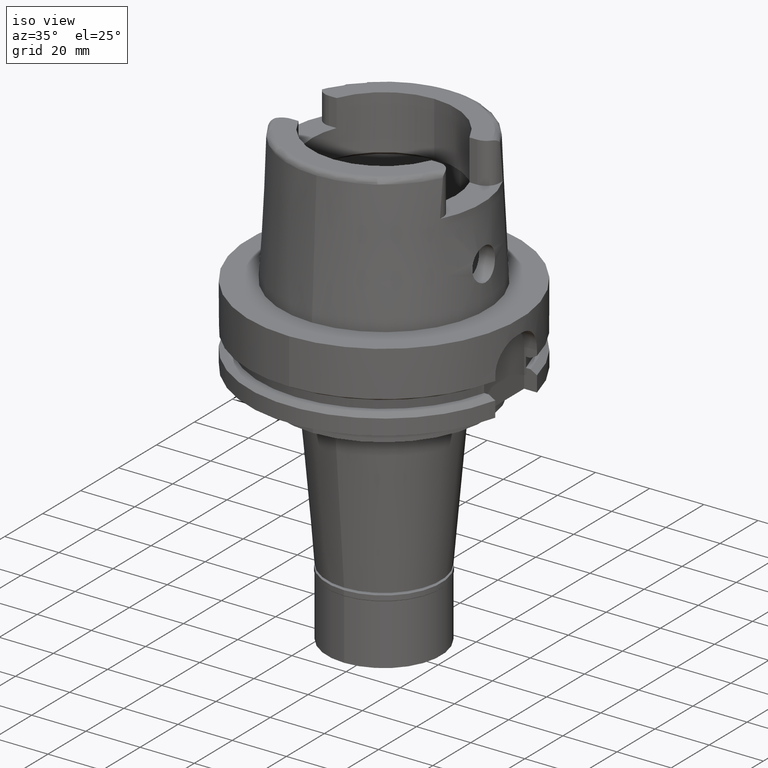
[diagram: clean part render]
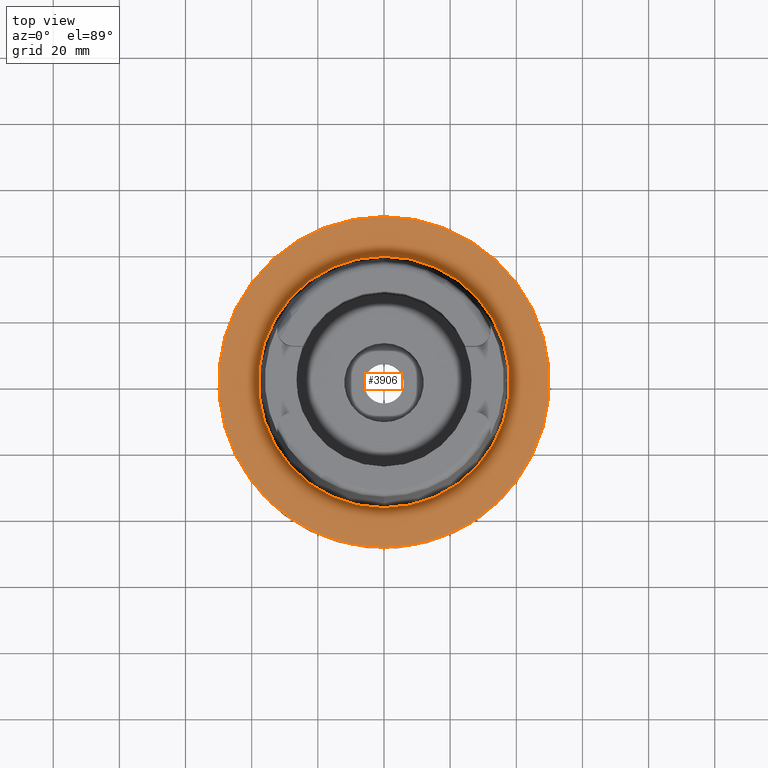
[diagram: tour spotlight — one face highlighted and labeled with its STEP entity id]
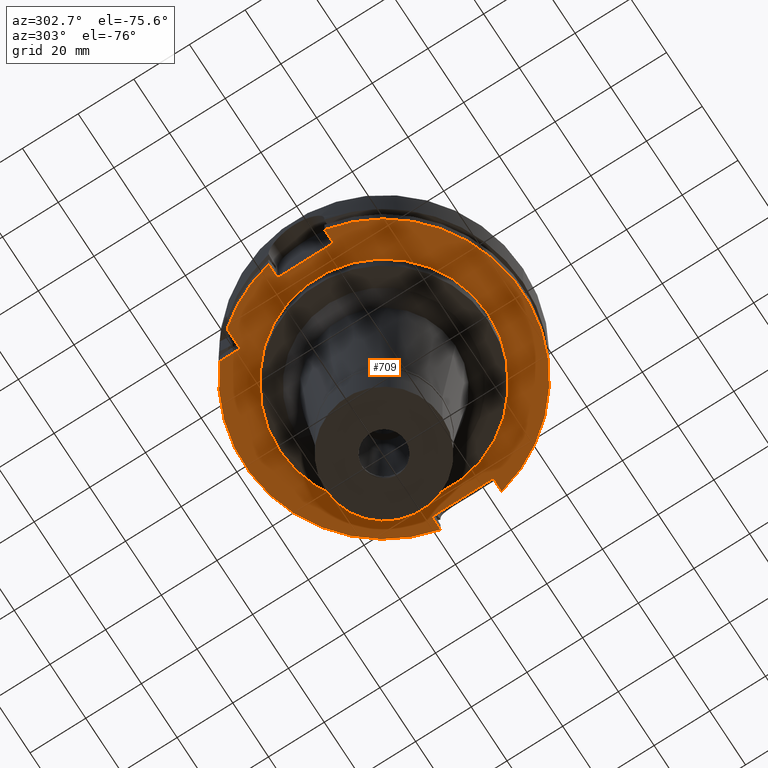
[diagram: tour spotlight — one face highlighted and labeled with its STEP entity id]
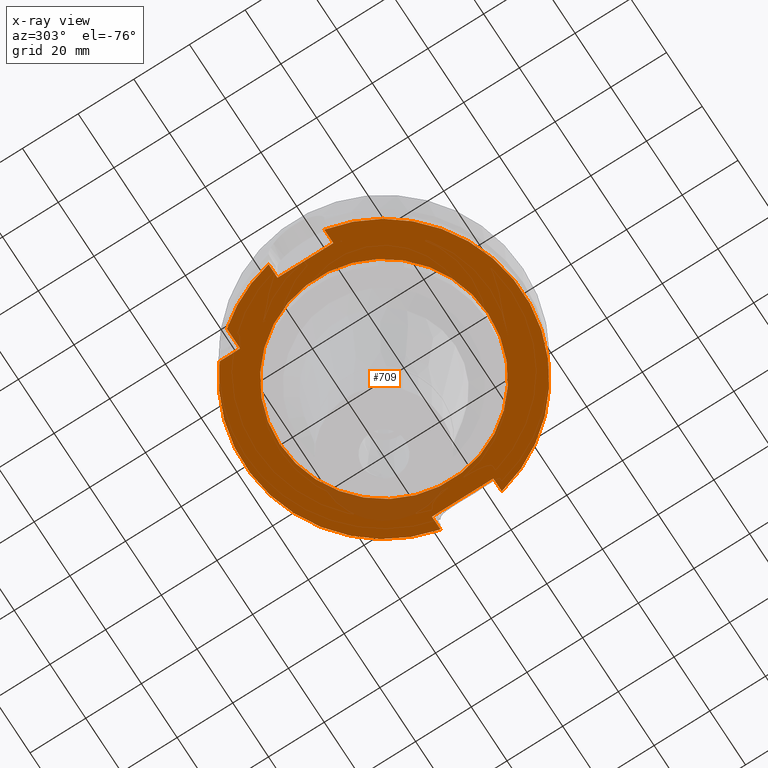
[diagram: x-ray of the same camera — body ghosted, this tour face saturated]
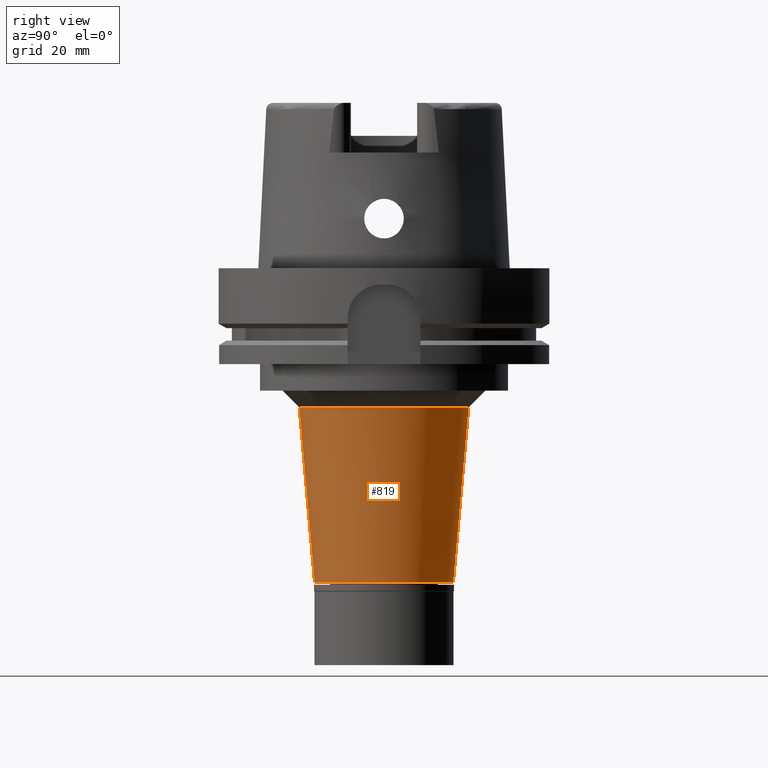
[diagram: tour spotlight — one face highlighted and labeled with its STEP entity id]
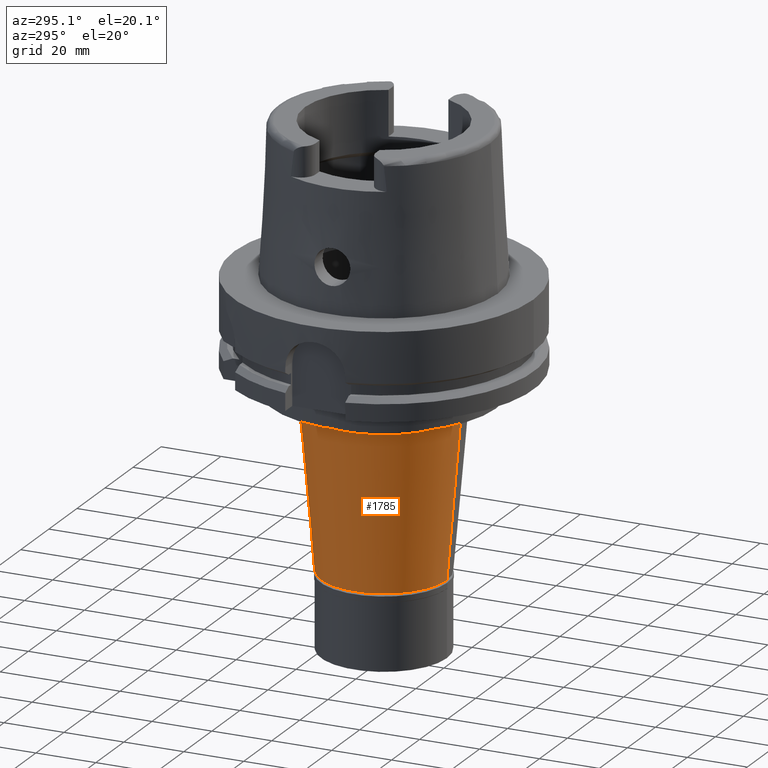
[diagram: tour spotlight — one face highlighted and labeled with its STEP entity id]
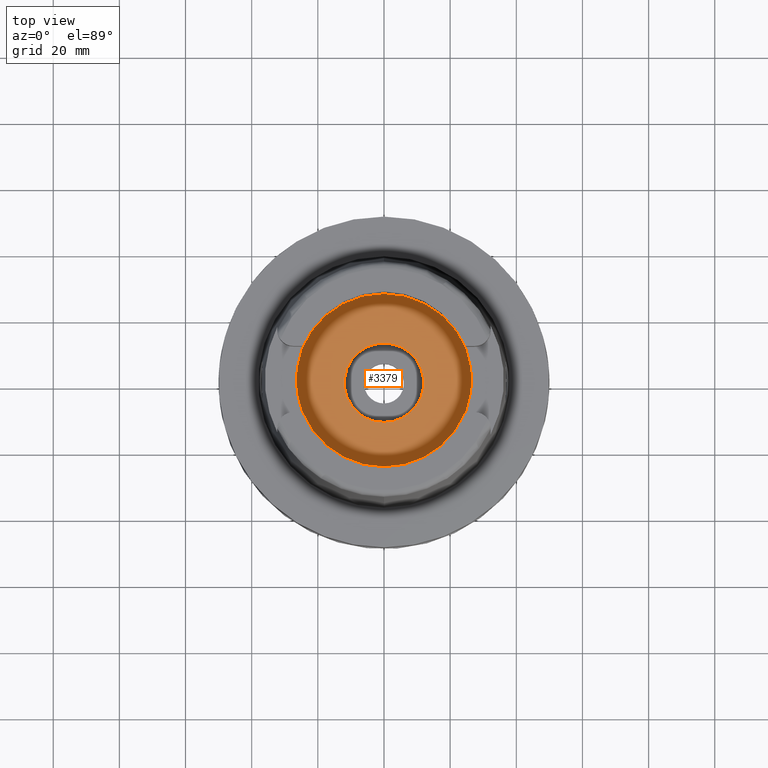
[diagram: tour spotlight — one face highlighted and labeled with its STEP entity id]
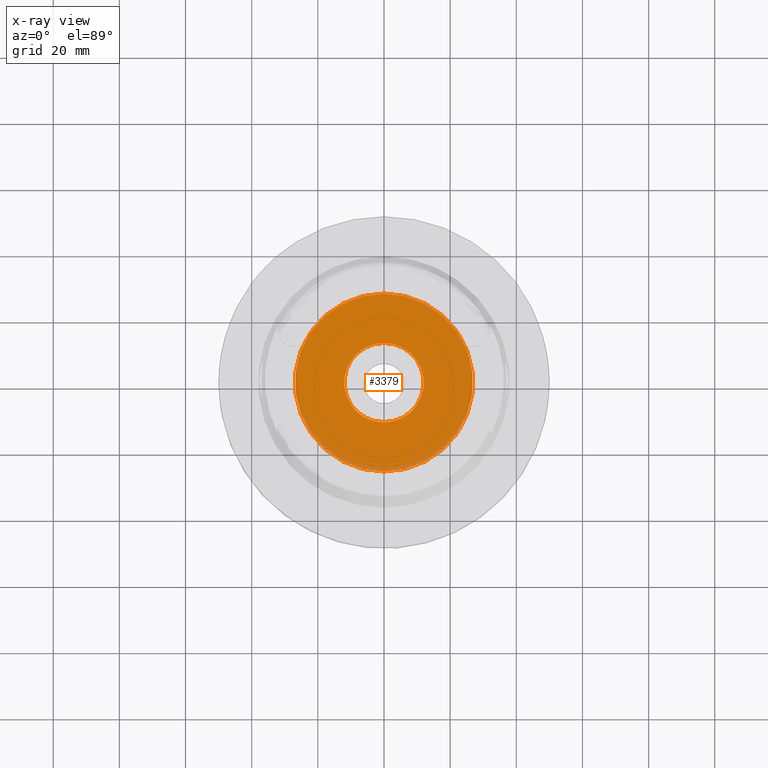
[diagram: x-ray of the same camera — body ghosted, this tour face saturated]
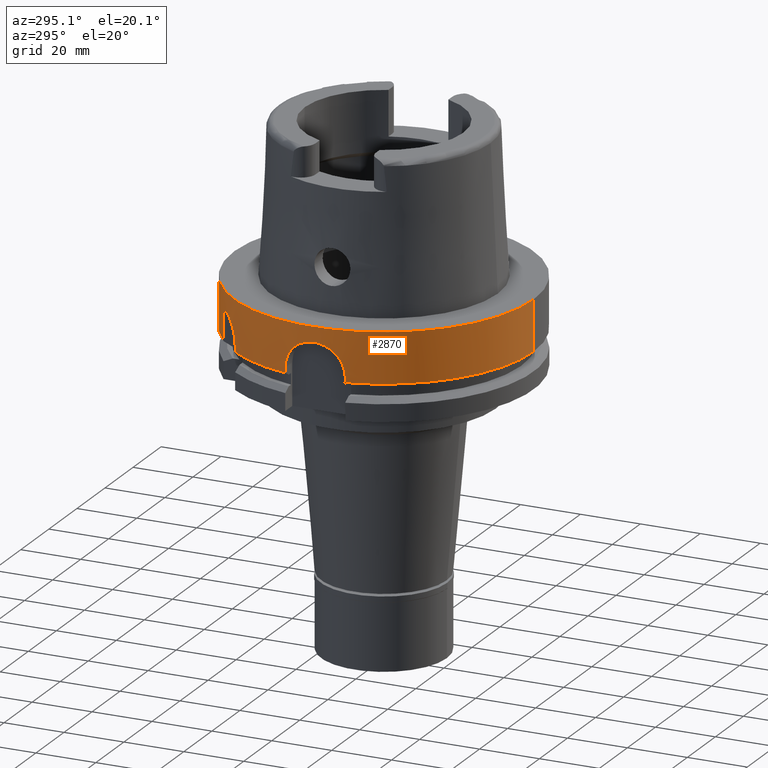
[diagram: tour spotlight — one face highlighted and labeled with its STEP entity id]
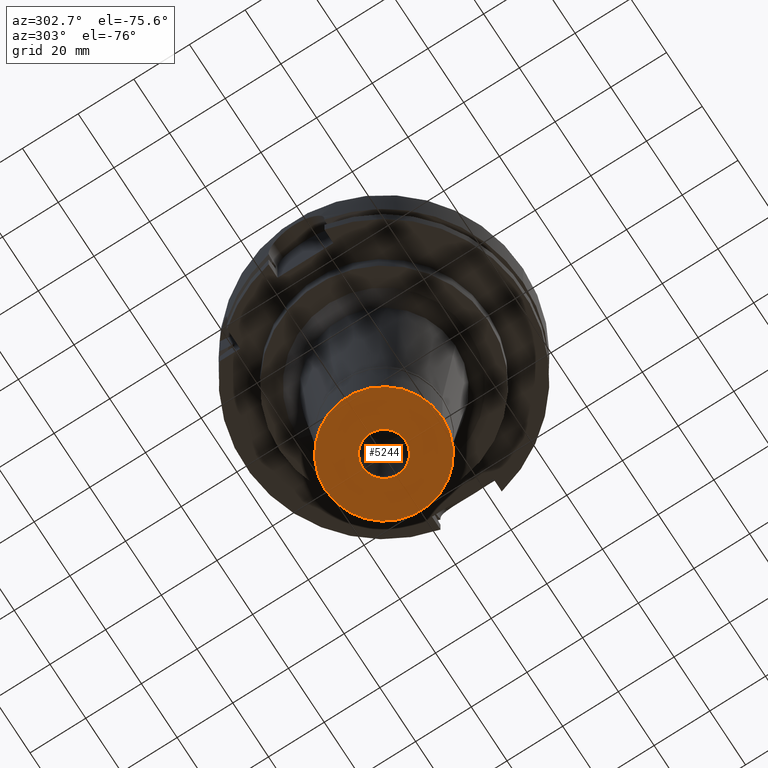
[diagram: tour spotlight — one face highlighted and labeled with its STEP entity id]
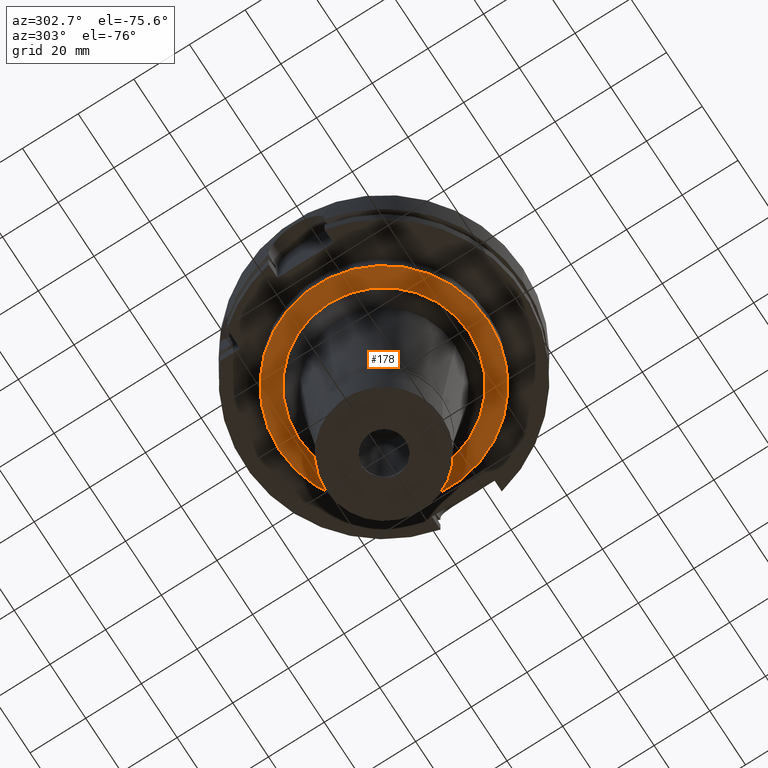
[diagram: tour spotlight — one face highlighted and labeled with its STEP entity id]
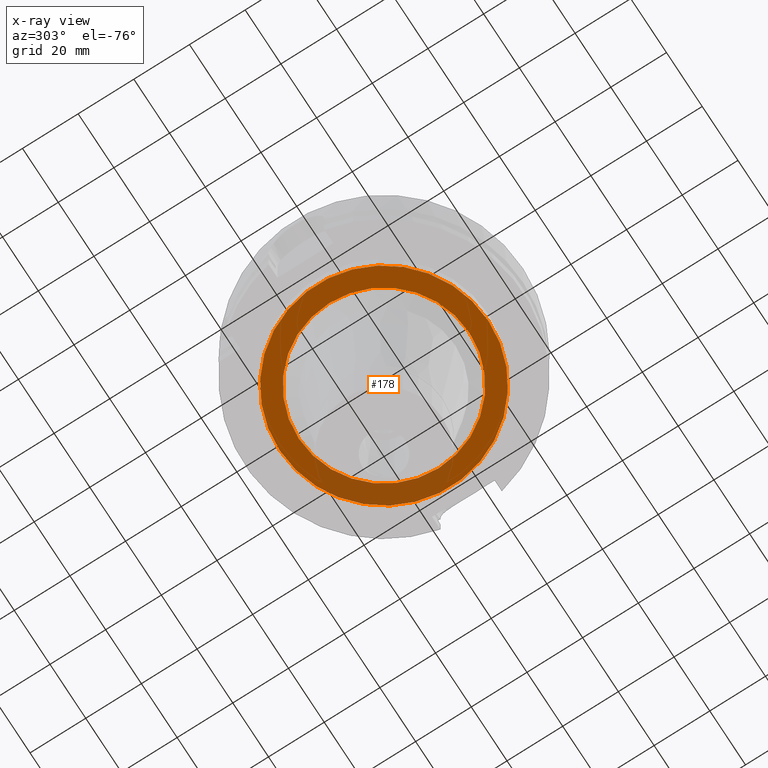
[diagram: x-ray of the same camera — body ghosted, this tour face saturated]
A machine part: a face-by-face anatomy tour. The part has 126 B-rep faces; the first image is the clean iso view, then the 8 largest visible faces are spotlighted one at a time (largest first), each with its STEP entity span.

Face 1 — top view, entity #3906. In plain terms, the highlighted planar face has unit normal (0, 0, 1).
Definition (entity closure, byte-faithful):
#263 = FACE_OUTER_BOUND ( 'NONE', #3381, .T. ) ;
#334 = CARTESIAN_POINT ( 'NONE',  ( 0.0000000000000000000, 0.0000000000000000000, 1.023181539494999863E-12 ) ) ;
#434 = AXIS2_PLACEMENT_3D ( 'NONE', #3197, #2319, #5297 ) ;
#657 = DIRECTION ( 'NONE',  ( 0.0000000000000000000, 0.0000000000000000000, 1.000000000000000000 ) ) ;
#721 = ORIENTED_EDGE ( 'NONE', *, *, #4300, .F. ) ;
#908 = EDGE_CURVE ( 'NONE', #3626, #4547, #1097, .T. ) ;
#1097 = CIRCLE ( 'NONE', #4243, 50.00000000000000000 ) ;
#1159 = CARTESIAN_POINT ( 'NONE',  ( 0.0000000000000000000, 0.0000000000000000000, 1.023181539494999863E-12 ) ) ;
#1233 = ORIENTED_EDGE ( 'NONE', *, *, #908, .F. ) ;
#1241 = DIRECTION ( 'NONE',  ( 0.0000000000000000000, 0.0000000000000000000, -1.000000000000000000 ) ) ;
#1525 = DIRECTION ( 'NONE',  ( 0.0000000000000000000, -1.000000000000000000, 0.0000000000000000000 ) ) ;
#1539 = FACE_BOUND ( 'NONE', #3312, .T. ) ;
#1737 = AXIS2_PLACEMENT_3D ( 'NONE', #3358, #4201, #3717 ) ;
#2009 = VERTEX_POINT ( 'NONE', #2355 ) ;
#2319 = DIRECTION ( 'NONE',  ( 0.0000000000000000000, 0.0000000000000000000, 1.000000000000000000 ) ) ;
#2355 = CARTESIAN_POINT ( 'NONE',  ( 0.0000000000000000000, -38.00001658251999714, 6.892264536873000076E-13 ) ) ;
#2359 = DIRECTION ( 'NONE',  ( 0.0000000000000000000, 1.000000000000000000, 0.0000000000000000000 ) ) ;
#2518 = CARTESIAN_POINT ( 'NONE',  ( 0.0000000000000000000, 0.0000000000000000000, 0.0000000000000000000 ) ) ;
#2524 = ORIENTED_EDGE ( 'NONE', *, *, #5411, .F. ) ;
#2624 = VERTEX_POINT ( 'NONE', #4753 ) ;
#3197 = CARTESIAN_POINT ( 'NONE',  ( 0.0000000000000000000, 0.0000000000000000000, 1.421085471519999843E-14 ) ) ;
#3235 = CARTESIAN_POINT ( 'NONE',  ( 0.0000000000000000000, 50.00000000000000000, 0.0000000000000000000 ) ) ;
#3312 = EDGE_LOOP ( 'NONE', ( #721, #2524 ) ) ;
#3358 = CARTESIAN_POINT ( 'NONE',  ( 0.0000000000000000000, 0.0000000000000000000, 0.0000000000000000000 ) ) ;
#3375 = DIRECTION ( 'NONE',  ( 0.0000000000000000000, 1.000000000000000000, 0.0000000000000000000 ) ) ;
#3381 = EDGE_LOOP ( 'NONE', ( #1233, #3828 ) ) ;
#3626 = VERTEX_POINT ( 'NONE', #3235 ) ;
#3717 = DIRECTION ( 'NONE',  ( 0.0000000000000000000, -1.000000000000000000, 0.0000000000000000000 ) ) ;
#3794 = DIRECTION ( 'NONE',  ( 0.0000000000000000000, 0.0000000000000000000, 1.000000000000000000 ) ) ;
#3828 = ORIENTED_EDGE ( 'NONE', *, *, #5091, .F. ) ;
#3850 = CARTESIAN_POINT ( 'NONE',  ( 0.0000000000000000000, -50.00000000000000000, 0.0000000000000000000 ) ) ;
#3906 = ADVANCED_FACE ( 'NONE', ( #263, #1539 ), #4036, .T. ) ;
#4036 = PLANE ( 'NONE',  #434 ) ;
#4201 = DIRECTION ( 'NONE',  ( 0.0000000000000000000, 0.0000000000000000000, -1.000000000000000000 ) ) ;
#4243 = AXIS2_PLACEMENT_3D ( 'NONE', #2518, #1241, #3375 ) ;
#4274 = CIRCLE ( 'NONE', #5187, 38.00001658251999714 ) ;
#4300 = EDGE_CURVE ( 'NONE', #2624, #2009, #4339, .T. ) ;
#4335 = AXIS2_PLACEMENT_3D ( 'NONE', #1159, #657, #2359 ) ;
#4339 = CIRCLE ( 'NONE', #4335, 38.00001658251999714 ) ;
#4424 = CIRCLE ( 'NONE', #1737, 50.00000000000000000 ) ;
#4547 = VERTEX_POINT ( 'NONE', #3850 ) ;
#4753 = CARTESIAN_POINT ( 'NONE',  ( 0.0000000000000000000, 38.00001658251999714, 1.023181539494999863E-12 ) ) ;
#5091 = EDGE_CURVE ( 'NONE', #4547, #3626, #4424, .T. ) ;
#5187 = AXIS2_PLACEMENT_3D ( 'NONE', #334, #3794, #1525 ) ;
#5297 = DIRECTION ( 'NONE',  ( 1.000000000000000000, 0.0000000000000000000, 0.0000000000000000000 ) ) ;
#5411 = EDGE_CURVE ( 'NONE', #2009, #2624, #4274, .T. ) ;

Face 2 — auxiliary view, entity #709. An x-ray twin of the same camera follows (body ghosted, this face saturated) — the face is partly hidden behind the body. In plain terms, the highlighted planar face has unit normal (0, 0, 1).
Definition (entity closure, byte-faithful):
#64 = DIRECTION ( 'NONE',  ( -1.000000000000000000, 4.627973610177000155E-14, 0.0000000000000000000 ) ) ;
#161 = DIRECTION ( 'NONE',  ( 0.0000000000000000000, 0.0000000000000000000, 1.000000000000000000 ) ) ;
#184 = DIRECTION ( 'NONE',  ( 1.000000000000000000, 0.0000000000000000000, 0.0000000000000000000 ) ) ;
#281 = EDGE_CURVE ( 'NONE', #701, #5114, #1889, .T. ) ;
#348 = VECTOR ( 'NONE', #645, 1000.000000000000000 ) ;
#370 = ORIENTED_EDGE ( 'NONE', *, *, #1987, .F. ) ;
#403 = CARTESIAN_POINT ( 'NONE',  ( 0.0000000000000000000, 0.0000000000000000000, -29.00000000000000000 ) ) ;
#438 = VERTEX_POINT ( 'NONE', #4205 ) ;
#474 = DIRECTION ( 'NONE',  ( 0.0000000000000000000, 0.0000000000000000000, 1.000000000000000000 ) ) ;
#517 = CARTESIAN_POINT ( 'NONE',  ( 0.0000000000000000000, 0.0000000000000000000, -29.00000000000000000 ) ) ;
#523 = DIRECTION ( 'NONE',  ( 0.0000000000000000000, 1.000000000000000000, 0.0000000000000000000 ) ) ;
#530 = CARTESIAN_POINT ( 'NONE',  ( -44.00000000000000000, -10.00000000000000000, -29.00000000000000000 ) ) ;
#595 = AXIS2_PLACEMENT_3D ( 'NONE', #3714, #2446, #662 ) ;
#596 = ORIENTED_EDGE ( 'NONE', *, *, #5404, .T. ) ;
#645 = DIRECTION ( 'NONE',  ( 1.000000000000000000, 1.711257052401000108E-14, 0.0000000000000000000 ) ) ;
#662 = DIRECTION ( 'NONE',  ( 0.0000000000000000000, -1.000000000000000000, 0.0000000000000000000 ) ) ;
#666 = EDGE_CURVE ( 'NONE', #3470, #3457, #2135, .T. ) ;
#701 = VERTEX_POINT ( 'NONE', #1382 ) ;
#709 = ADVANCED_FACE ( 'NONE', ( #4838, #990 ), #914, .F. ) ;
#712 = VERTEX_POINT ( 'NONE', #1338 ) ;
#869 = CIRCLE ( 'NONE', #5188, 50.00000000000000000 ) ;
#880 = EDGE_CURVE ( 'NONE', #2002, #4294, #4073, .T. ) ;
#897 = ORIENTED_EDGE ( 'NONE', *, *, #4878, .T. ) ;
#898 = LINE ( 'NONE', #3895, #4615 ) ;
#911 = ORIENTED_EDGE ( 'NONE', *, *, #3323, .F. ) ;
#914 = PLANE ( 'NONE',  #3152 ) ;
#925 = VECTOR ( 'NONE', #3647, 1000.000000000000000 ) ;
#947 = AXIS2_PLACEMENT_3D ( 'NONE', #1733, #474, #2173 ) ;
#990 = FACE_BOUND ( 'NONE', #2682, .T. ) ;
#1013 = AXIS2_PLACEMENT_3D ( 'NONE', #2088, #1228, #1673 ) ;
#1067 = CARTESIAN_POINT ( 'NONE',  ( 44.00000000000000000, -11.00000000000000000, -29.00000000000000000 ) ) ;
#1124 = ORIENTED_EDGE ( 'NONE', *, *, #281, .F. ) ;
#1220 = CARTESIAN_POINT ( 'NONE',  ( -31.50000000000000000, 31.50000000000000000, -29.00000000000000000 ) ) ;
#1221 = VECTOR ( 'NONE', #5254, 1000.000000000000000 ) ;
#1228 = DIRECTION ( 'NONE',  ( 0.0000000000000000000, 0.0000000000000000000, -1.000000000000000000 ) ) ;
#1295 = CIRCLE ( 'NONE', #1013, 37.50000000000000000 ) ;
#1317 = LINE ( 'NONE', #3887, #1221 ) ;
#1338 = CARTESIAN_POINT ( 'NONE',  ( 44.00000000000000000, -11.00000000000000000, -29.00000000000000000 ) ) ;
#1382 = CARTESIAN_POINT ( 'NONE',  ( -44.00000000000000000, -10.00000000000000000, -29.00000000000000000 ) ) ;
#1390 = CARTESIAN_POINT ( 'NONE',  ( -38.82975663071000128, 31.50000000000000000, -29.00000000000000000 ) ) ;
#1419 = DIRECTION ( 'NONE',  ( 0.0000000000000000000, 0.0000000000000000000, -1.000000000000000000 ) ) ;
#1673 = DIRECTION ( 'NONE',  ( 0.0000000000000000000, -1.000000000000000000, 0.0000000000000000000 ) ) ;
#1733 = CARTESIAN_POINT ( 'NONE',  ( 0.0000000000000000000, 0.0000000000000000000, -29.00000000000000000 ) ) ;
#1833 = AXIS2_PLACEMENT_3D ( 'NONE', #2277, #1419, #523 ) ;
#1849 = ORIENTED_EDGE ( 'NONE', *, *, #2875, .F. ) ;
#1889 = LINE ( 'NONE', #530, #3254 ) ;
#1920 = ORIENTED_EDGE ( 'NONE', *, *, #3594, .F. ) ;
#1940 = CARTESIAN_POINT ( 'NONE',  ( 44.00000000000000000, 11.00000000000000000, -29.00000000000000000 ) ) ;
#1987 = EDGE_CURVE ( 'NONE', #3457, #4340, #5352, .T. ) ;
#1995 = CARTESIAN_POINT ( 'NONE',  ( 0.0000000000000000000, 37.50000000000000000, -29.00000000000000000 ) ) ;
#2002 = VERTEX_POINT ( 'NONE', #5016 ) ;
#2055 = VERTEX_POINT ( 'NONE', #1995 ) ;
#2088 = CARTESIAN_POINT ( 'NONE',  ( 0.0000000000000000000, 0.0000000000000000000, -29.00000000000000000 ) ) ;
#2135 = LINE ( 'NONE', #4031, #2342 ) ;
#2173 = DIRECTION ( 'NONE',  ( -0.7765951326141738997, 0.6299999999999789102, 0.0000000000000000000 ) ) ;
#2237 = ORIENTED_EDGE ( 'NONE', *, *, #5068, .F. ) ;
#2277 = CARTESIAN_POINT ( 'NONE',  ( 0.0000000000000000000, 0.0000000000000000000, -29.00000000000000000 ) ) ;
#2342 = VECTOR ( 'NONE', #5282, 1000.000000000000000 ) ;
#2446 = DIRECTION ( 'NONE',  ( 0.0000000000000000000, 0.0000000000000000000, 1.000000000000000000 ) ) ;
#2553 = VERTEX_POINT ( 'NONE', #4216 ) ;
#2636 = ORIENTED_EDGE ( 'NONE', *, *, #666, .F. ) ;
#2662 = EDGE_LOOP ( 'NONE', ( #1849, #4440, #4039, #3010, #1920, #1124, #3743, #897, #370, #2636, #596 ) ) ;
#2682 = EDGE_LOOP ( 'NONE', ( #911, #2237 ) ) ;
#2875 = EDGE_CURVE ( 'NONE', #4294, #5279, #869, .T. ) ;
#3010 = ORIENTED_EDGE ( 'NONE', *, *, #4012, .T. ) ;
#3150 = CARTESIAN_POINT ( 'NONE',  ( -31.50000000000000000, 31.50000000000000000, -29.00000000000000000 ) ) ;
#3152 = AXIS2_PLACEMENT_3D ( 'NONE', #517, #161, #184 ) ;
#3254 = VECTOR ( 'NONE', #3577, 1000.000000000000000 ) ;
#3317 = CARTESIAN_POINT ( 'NONE',  ( -48.98979485565999425, 10.00000000000000000, -29.00000000000000000 ) ) ;
#3323 = EDGE_CURVE ( 'NONE', #2055, #5381, #4275, .T. ) ;
#3349 = DIRECTION ( 'NONE',  ( 4.798503851105999980E-14, 1.000000000000000000, 0.0000000000000000000 ) ) ;
#3457 = VERTEX_POINT ( 'NONE', #1390 ) ;
#3470 = VERTEX_POINT ( 'NONE', #3150 ) ;
#3577 = DIRECTION ( 'NONE',  ( -1.000000000000000000, -4.627973610177000155E-14, 0.0000000000000000000 ) ) ;
#3594 = EDGE_CURVE ( 'NONE', #5114, #2553, #5092, .T. ) ;
#3647 = DIRECTION ( 'NONE',  ( 1.000000000000000000, -1.785659532940000023E-14, 0.0000000000000000000 ) ) ;
#3683 = DIRECTION ( 'NONE',  ( 0.0000000000000000000, 1.000000000000000000, 0.0000000000000000000 ) ) ;
#3714 = CARTESIAN_POINT ( 'NONE',  ( 0.0000000000000000000, 0.0000000000000000000, -29.00000000000000000 ) ) ;
#3743 = ORIENTED_EDGE ( 'NONE', *, *, #5132, .T. ) ;
#3816 = VECTOR ( 'NONE', #3349, 1000.000000000000000 ) ;
#3887 = CARTESIAN_POINT ( 'NONE',  ( 44.00000000000000000, 11.00000000000000000, -29.00000000000000000 ) ) ;
#3895 = CARTESIAN_POINT ( 'NONE',  ( -44.00000000000000000, 10.00000000000000000, -29.00000000000000000 ) ) ;
#4012 = EDGE_CURVE ( 'NONE', #712, #2553, #4435, .T. ) ;
#4031 = CARTESIAN_POINT ( 'NONE',  ( -31.50000000000000000, 31.50000000000000000, -29.00000000000000000 ) ) ;
#4039 = ORIENTED_EDGE ( 'NONE', *, *, #5276, .T. ) ;
#4073 = LINE ( 'NONE', #1940, #925 ) ;
#4205 = CARTESIAN_POINT ( 'NONE',  ( -44.00000000000000000, 10.00000000000000000, -29.00000000000000000 ) ) ;
#4210 = DIRECTION ( 'NONE',  ( 0.0000000000000000000, 1.000000000000000000, 0.0000000000000000000 ) ) ;
#4216 = CARTESIAN_POINT ( 'NONE',  ( 48.77499359303000404, -11.00000000000000000, -29.00000000000000000 ) ) ;
#4275 = CIRCLE ( 'NONE', #1833, 37.50000000000000000 ) ;
#4294 = VERTEX_POINT ( 'NONE', #5019 ) ;
#4340 = VERTEX_POINT ( 'NONE', #3317 ) ;
#4435 = LINE ( 'NONE', #1067, #348 ) ;
#4440 = ORIENTED_EDGE ( 'NONE', *, *, #880, .F. ) ;
#4565 = LINE ( 'NONE', #1220, #3816 ) ;
#4615 = VECTOR ( 'NONE', #64, 1000.000000000000000 ) ;
#4626 = CARTESIAN_POINT ( 'NONE',  ( 0.0000000000000000000, -37.50000000000000000, -29.00000000000000000 ) ) ;
#4796 = CARTESIAN_POINT ( 'NONE',  ( -31.50000000000000000, 38.82975663071000128, -29.00000000000000000 ) ) ;
#4838 = FACE_OUTER_BOUND ( 'NONE', #2662, .T. ) ;
#4878 = EDGE_CURVE ( 'NONE', #438, #4340, #898, .T. ) ;
#5016 = CARTESIAN_POINT ( 'NONE',  ( 44.00000000000000000, 11.00000000000000000, -29.00000000000000000 ) ) ;
#5019 = CARTESIAN_POINT ( 'NONE',  ( 48.77499359303000404, 11.00000000000000000, -29.00000000000000000 ) ) ;
#5060 = DIRECTION ( 'NONE',  ( 0.0000000000000000000, 0.0000000000000000000, 1.000000000000000000 ) ) ;
#5068 = EDGE_CURVE ( 'NONE', #5381, #2055, #1295, .T. ) ;
#5085 = CARTESIAN_POINT ( 'NONE',  ( -44.00000000000000000, -10.00000000000000000, -29.00000000000000000 ) ) ;
#5092 = CIRCLE ( 'NONE', #595, 50.00000000000000000 ) ;
#5114 = VERTEX_POINT ( 'NONE', #5431 ) ;
#5132 = EDGE_CURVE ( 'NONE', #701, #438, #5547, .T. ) ;
#5188 = AXIS2_PLACEMENT_3D ( 'NONE', #403, #5060, #4210 ) ;
#5254 = DIRECTION ( 'NONE',  ( 0.0000000000000000000, -1.000000000000000000, 0.0000000000000000000 ) ) ;
#5276 = EDGE_CURVE ( 'NONE', #2002, #712, #1317, .T. ) ;
#5279 = VERTEX_POINT ( 'NONE', #4796 ) ;
#5282 = DIRECTION ( 'NONE',  ( -1.000000000000000000, -4.798503851105999980E-14, 0.0000000000000000000 ) ) ;
#5352 = CIRCLE ( 'NONE', #947, 50.00000000000000711 ) ;
#5359 = VECTOR ( 'NONE', #3683, 1000.000000000000000 ) ;
#5381 = VERTEX_POINT ( 'NONE', #4626 ) ;
#5404 = EDGE_CURVE ( 'NONE', #3470, #5279, #4565, .T. ) ;
#5431 = CARTESIAN_POINT ( 'NONE',  ( -48.98979485565999425, -10.00000000000000000, -29.00000000000000000 ) ) ;
#5547 = LINE ( 'NONE', #5085, #5359 ) ;

Face 3 — right view, entity #819. In plain terms, the highlighted conical surface has half-angle 5 deg.
Definition (entity closure, byte-faithful):
#48 = CARTESIAN_POINT ( 'NONE',  ( 0.0000000000000000000, -21.00000000000000000, -94.89999999999999147 ) ) ;
#365 = CARTESIAN_POINT ( 'NONE',  ( 0.0000000000000000000, 0.0000000000000000000, -94.89999999999999147 ) ) ;
#418 = CIRCLE ( 'NONE', #1118, 21.00000000000000000 ) ;
#653 = AXIS2_PLACEMENT_3D ( 'NONE', #5136, #2497, #1274 ) ;
#819 = ADVANCED_FACE ( 'NONE', ( #2383 ), #4604, .T. ) ;
#1069 = VERTEX_POINT ( 'NONE', #2572 ) ;
#1118 = AXIS2_PLACEMENT_3D ( 'NONE', #365, #5513, #1249 ) ;
#1249 = DIRECTION ( 'NONE',  ( 0.0000000000000000000, -1.000000000000000000, 0.0000000000000000000 ) ) ;
#1274 = DIRECTION ( 'NONE',  ( 0.0000000000000000000, -1.000000000000000000, 0.0000000000000000000 ) ) ;
#1749 = ORIENTED_EDGE ( 'NONE', *, *, #3998, .F. ) ;
#2157 = VERTEX_POINT ( 'NONE', #3735 ) ;
#2187 = VERTEX_POINT ( 'NONE', #48 ) ;
#2205 = DIRECTION ( 'NONE',  ( 0.0000000000000000000, 0.08715574274765398866, -0.9961946980917458783 ) ) ;
#2361 = EDGE_CURVE ( 'NONE', #2187, #1069, #418, .T. ) ;
#2376 = LINE ( 'NONE', #3669, #2728 ) ;
#2383 = FACE_OUTER_BOUND ( 'NONE', #4397, .T. ) ;
#2497 = DIRECTION ( 'NONE',  ( 0.0000000000000000000, 0.0000000000000000000, 1.000000000000000000 ) ) ;
#2572 = CARTESIAN_POINT ( 'NONE',  ( 0.0000000000000000000, 21.00000000000000000, -94.89999999999999147 ) ) ;
#2724 = ORIENTED_EDGE ( 'NONE', *, *, #2976, .T. ) ;
#2728 = VECTOR ( 'NONE', #4098, 1000.000000000000000 ) ;
#2829 = CARTESIAN_POINT ( 'NONE',  ( 0.0000000000000000000, 0.0000000000000000000, -68.45000000000000284 ) ) ;
#2880 = AXIS2_PLACEMENT_3D ( 'NONE', #2829, #5015, #4043 ) ;
#2976 = EDGE_CURVE ( 'NONE', #2157, #2187, #3896, .T. ) ;
#3297 = CARTESIAN_POINT ( 'NONE',  ( 0.0000000000000000000, 25.62815030052000154, -42.00000000000000000 ) ) ;
#3629 = VERTEX_POINT ( 'NONE', #3297 ) ;
#3669 = CARTESIAN_POINT ( 'NONE',  ( 0.0000000000000000000, 25.62815030052000154, -42.00000000000000000 ) ) ;
#3735 = CARTESIAN_POINT ( 'NONE',  ( 0.0000000000000000000, -25.62815030052000154, -42.00000000000000000 ) ) ;
#3896 = LINE ( 'NONE', #4379, #5086 ) ;
#3960 = CIRCLE ( 'NONE', #653, 25.62815030052000154 ) ;
#3998 = EDGE_CURVE ( 'NONE', #3629, #1069, #2376, .T. ) ;
#4043 = DIRECTION ( 'NONE',  ( 0.0000000000000000000, 1.000000000000000000, 0.0000000000000000000 ) ) ;
#4098 = DIRECTION ( 'NONE',  ( 0.0000000000000000000, -0.08715574274765398866, -0.9961946980917458783 ) ) ;
#4379 = CARTESIAN_POINT ( 'NONE',  ( 0.0000000000000000000, -25.62815030052000154, -42.00000000000000000 ) ) ;
#4397 = EDGE_LOOP ( 'NONE', ( #4969, #2724, #5052, #1749 ) ) ;
#4548 = EDGE_CURVE ( 'NONE', #2157, #3629, #3960, .T. ) ;
#4604 = CONICAL_SURFACE ( 'NONE', #2880, 23.31407515026000254, 0.08726646259969973729 ) ;
#4969 = ORIENTED_EDGE ( 'NONE', *, *, #4548, .F. ) ;
#5015 = DIRECTION ( 'NONE',  ( 0.0000000000000000000, 0.0000000000000000000, 1.000000000000000000 ) ) ;
#5052 = ORIENTED_EDGE ( 'NONE', *, *, #2361, .T. ) ;
#5086 = VECTOR ( 'NONE', #2205, 1000.000000000000000 ) ;
#5136 = CARTESIAN_POINT ( 'NONE',  ( 0.0000000000000000000, 0.0000000000000000000, -42.00000000000000000 ) ) ;
#5513 = DIRECTION ( 'NONE',  ( 0.0000000000000000000, 0.0000000000000000000, 1.000000000000000000 ) ) ;

Face 4 — auxiliary view, entity #1785. In plain terms, the highlighted conical surface has half-angle 5 deg.
Definition (entity closure, byte-faithful):
#48 = CARTESIAN_POINT ( 'NONE',  ( 0.0000000000000000000, -21.00000000000000000, -94.89999999999999147 ) ) ;
#291 = CARTESIAN_POINT ( 'NONE',  ( 0.0000000000000000000, 0.0000000000000000000, -94.89999999999999147 ) ) ;
#863 = AXIS2_PLACEMENT_3D ( 'NONE', #291, #1178, #3704 ) ;
#965 = ORIENTED_EDGE ( 'NONE', *, *, #2476, .T. ) ;
#973 = DIRECTION ( 'NONE',  ( 0.0000000000000000000, 0.0000000000000000000, 1.000000000000000000 ) ) ;
#1069 = VERTEX_POINT ( 'NONE', #2572 ) ;
#1131 = EDGE_CURVE ( 'NONE', #2157, #3629, #4153, .T. ) ;
#1178 = DIRECTION ( 'NONE',  ( 0.0000000000000000000, 0.0000000000000000000, 1.000000000000000000 ) ) ;
#1308 = ORIENTED_EDGE ( 'NONE', *, *, #1131, .T. ) ;
#1383 = CONICAL_SURFACE ( 'NONE', #2997, 23.31407515026000254, 0.08726646259969973729 ) ;
#1771 = DIRECTION ( 'NONE',  ( 0.0000000000000000000, 0.0000000000000000000, -1.000000000000000000 ) ) ;
#1785 = ADVANCED_FACE ( 'NONE', ( #2905 ), #1383, .T. ) ;
#2157 = VERTEX_POINT ( 'NONE', #3735 ) ;
#2183 = DIRECTION ( 'NONE',  ( 0.0000000000000000000, -1.000000000000000000, 0.0000000000000000000 ) ) ;
#2187 = VERTEX_POINT ( 'NONE', #48 ) ;
#2205 = DIRECTION ( 'NONE',  ( 0.0000000000000000000, 0.08715574274765398866, -0.9961946980917458783 ) ) ;
#2376 = LINE ( 'NONE', #3669, #2728 ) ;
#2435 = AXIS2_PLACEMENT_3D ( 'NONE', #2672, #1771, #2183 ) ;
#2476 = EDGE_CURVE ( 'NONE', #1069, #2187, #2811, .T. ) ;
#2572 = CARTESIAN_POINT ( 'NONE',  ( 0.0000000000000000000, 21.00000000000000000, -94.89999999999999147 ) ) ;
#2609 = DIRECTION ( 'NONE',  ( 0.0000000000000000000, 1.000000000000000000, 0.0000000000000000000 ) ) ;
#2672 = CARTESIAN_POINT ( 'NONE',  ( 0.0000000000000000000, 0.0000000000000000000, -42.00000000000000000 ) ) ;
#2728 = VECTOR ( 'NONE', #4098, 1000.000000000000000 ) ;
#2811 = CIRCLE ( 'NONE', #863, 21.00000000000000000 ) ;
#2905 = FACE_OUTER_BOUND ( 'NONE', #5058, .T. ) ;
#2976 = EDGE_CURVE ( 'NONE', #2157, #2187, #3896, .T. ) ;
#2997 = AXIS2_PLACEMENT_3D ( 'NONE', #5525, #973, #2609 ) ;
#3297 = CARTESIAN_POINT ( 'NONE',  ( 0.0000000000000000000, 25.62815030052000154, -42.00000000000000000 ) ) ;
#3508 = ORIENTED_EDGE ( 'NONE', *, *, #2976, .F. ) ;
#3629 = VERTEX_POINT ( 'NONE', #3297 ) ;
#3658 = ORIENTED_EDGE ( 'NONE', *, *, #3998, .T. ) ;
#3669 = CARTESIAN_POINT ( 'NONE',  ( 0.0000000000000000000, 25.62815030052000154, -42.00000000000000000 ) ) ;
#3704 = DIRECTION ( 'NONE',  ( 0.0000000000000000000, 1.000000000000000000, 0.0000000000000000000 ) ) ;
#3735 = CARTESIAN_POINT ( 'NONE',  ( 0.0000000000000000000, -25.62815030052000154, -42.00000000000000000 ) ) ;
#3896 = LINE ( 'NONE', #4379, #5086 ) ;
#3998 = EDGE_CURVE ( 'NONE', #3629, #1069, #2376, .T. ) ;
#4098 = DIRECTION ( 'NONE',  ( 0.0000000000000000000, -0.08715574274765398866, -0.9961946980917458783 ) ) ;
#4153 = CIRCLE ( 'NONE', #2435, 25.62815030052000154 ) ;
#4379 = CARTESIAN_POINT ( 'NONE',  ( 0.0000000000000000000, -25.62815030052000154, -42.00000000000000000 ) ) ;
#5058 = EDGE_LOOP ( 'NONE', ( #965, #3508, #1308, #3658 ) ) ;
#5086 = VECTOR ( 'NONE', #2205, 1000.000000000000000 ) ;
#5525 = CARTESIAN_POINT ( 'NONE',  ( 0.0000000000000000000, 0.0000000000000000000, -68.45000000000000284 ) ) ;

Face 5 — top view, entity #3379. An x-ray twin of the same camera follows (body ghosted, this face saturated) — the face is partly hidden behind the body. In plain terms, the highlighted planar face has unit normal (0, 0, 1).
Definition (entity closure, byte-faithful):
#88 = CARTESIAN_POINT ( 'NONE',  ( 0.0000000000000000000, 26.89999999999999858, -12.44999999999999929 ) ) ;
#140 = CARTESIAN_POINT ( 'NONE',  ( 0.0000000000000000000, 0.0000000000000000000, -12.44999999999999929 ) ) ;
#176 = CARTESIAN_POINT ( 'NONE',  ( 0.0000000000000000000, 0.0000000000000000000, -12.44999999999999929 ) ) ;
#430 = AXIS2_PLACEMENT_3D ( 'NONE', #140, #2246, #1442 ) ;
#545 = FACE_BOUND ( 'NONE', #4287, .T. ) ;
#547 = EDGE_CURVE ( 'NONE', #1449, #3011, #560, .T. ) ;
#560 = CIRCLE ( 'NONE', #3691, 12.00000000000000000 ) ;
#576 = PLANE ( 'NONE',  #430 ) ;
#583 = DIRECTION ( 'NONE',  ( 0.0000000000000000000, 0.0000000000000000000, -1.000000000000000000 ) ) ;
#624 = ORIENTED_EDGE ( 'NONE', *, *, #1681, .F. ) ;
#876 = CARTESIAN_POINT ( 'NONE',  ( 0.0000000000000000000, 12.00000000000000000, -12.44999999999999929 ) ) ;
#906 = ORIENTED_EDGE ( 'NONE', *, *, #2849, .F. ) ;
#989 = CARTESIAN_POINT ( 'NONE',  ( 0.0000000000000000000, 0.0000000000000000000, -12.44999999999999929 ) ) ;
#995 = DIRECTION ( 'NONE',  ( 0.0000000000000000000, 0.0000000000000000000, -1.000000000000000000 ) ) ;
#1112 = CIRCLE ( 'NONE', #4261, 26.89999999999999858 ) ;
#1126 = AXIS2_PLACEMENT_3D ( 'NONE', #176, #1862, #5320 ) ;
#1311 = CARTESIAN_POINT ( 'NONE',  ( 0.0000000000000000000, -26.89999999999999858, -12.44999999999999929 ) ) ;
#1442 = DIRECTION ( 'NONE',  ( 1.000000000000000000, 0.0000000000000000000, 0.0000000000000000000 ) ) ;
#1449 = VERTEX_POINT ( 'NONE', #2042 ) ;
#1681 = EDGE_CURVE ( 'NONE', #2392, #1852, #1112, .T. ) ;
#1852 = VERTEX_POINT ( 'NONE', #88 ) ;
#1862 = DIRECTION ( 'NONE',  ( 0.0000000000000000000, 0.0000000000000000000, 1.000000000000000000 ) ) ;
#2042 = CARTESIAN_POINT ( 'NONE',  ( 0.0000000000000000000, -12.00000000000000000, -12.44999999999999929 ) ) ;
#2176 = CIRCLE ( 'NONE', #4789, 26.89999999999999858 ) ;
#2246 = DIRECTION ( 'NONE',  ( 0.0000000000000000000, 0.0000000000000000000, 1.000000000000000000 ) ) ;
#2392 = VERTEX_POINT ( 'NONE', #1311 ) ;
#2677 = DIRECTION ( 'NONE',  ( 0.0000000000000000000, -1.000000000000000000, 0.0000000000000000000 ) ) ;
#2738 = DIRECTION ( 'NONE',  ( 0.0000000000000000000, 0.0000000000000000000, 1.000000000000000000 ) ) ;
#2750 = CARTESIAN_POINT ( 'NONE',  ( 0.0000000000000000000, 0.0000000000000000000, -12.44999999999999929 ) ) ;
#2805 = EDGE_LOOP ( 'NONE', ( #4688, #624 ) ) ;
#2849 = EDGE_CURVE ( 'NONE', #3011, #1449, #3632, .T. ) ;
#3011 = VERTEX_POINT ( 'NONE', #876 ) ;
#3186 = DIRECTION ( 'NONE',  ( 0.0000000000000000000, 1.000000000000000000, 0.0000000000000000000 ) ) ;
#3237 = CARTESIAN_POINT ( 'NONE',  ( 0.0000000000000000000, 0.0000000000000000000, -12.44999999999999929 ) ) ;
#3379 = ADVANCED_FACE ( 'NONE', ( #3963, #545 ), #576, .T. ) ;
#3632 = CIRCLE ( 'NONE', #1126, 12.00000000000000000 ) ;
#3691 = AXIS2_PLACEMENT_3D ( 'NONE', #989, #2738, #2677 ) ;
#3963 = FACE_OUTER_BOUND ( 'NONE', #2805, .T. ) ;
#4261 = AXIS2_PLACEMENT_3D ( 'NONE', #2750, #583, #5349 ) ;
#4287 = EDGE_LOOP ( 'NONE', ( #906, #4372 ) ) ;
#4372 = ORIENTED_EDGE ( 'NONE', *, *, #547, .F. ) ;
#4688 = ORIENTED_EDGE ( 'NONE', *, *, #4950, .F. ) ;
#4789 = AXIS2_PLACEMENT_3D ( 'NONE', #3237, #995, #3186 ) ;
#4950 = EDGE_CURVE ( 'NONE', #1852, #2392, #2176, .T. ) ;
#5320 = DIRECTION ( 'NONE',  ( 0.0000000000000000000, 1.000000000000000000, 0.0000000000000000000 ) ) ;
#5349 = DIRECTION ( 'NONE',  ( 0.0000000000000000000, -1.000000000000000000, 0.0000000000000000000 ) ) ;

Face 6 — auxiliary view, entity #2870. In plain terms, the highlighted cylindrical surface (partial cylindrical patch) has radius 50 mm, axis along (0, 0, 1).
Definition (entity closure, byte-faithful):
#47 = ORIENTED_EDGE ( 'NONE', *, *, #2833, .F. ) ;
#51 = ORIENTED_EDGE ( 'NONE', *, *, #1748, .T. ) ;
#63 = VERTEX_POINT ( 'NONE', #824 ) ;
#130 = VERTEX_POINT ( 'NONE', #4356 ) ;
#136 = VECTOR ( 'NONE', #4382, 1000.000000000000114 ) ;
#148 = CARTESIAN_POINT ( 'NONE',  ( -31.50000000000000000, 38.82975663071000128, -5.000000000003000267 ) ) ;
#199 = CARTESIAN_POINT ( 'NONE',  ( -38.82975663071001549, 31.50000000000000000, -14.13560601358186730 ) ) ;
#220 = EDGE_CURVE ( 'NONE', #1674, #130, #1815, .T. ) ;
#223 = CARTESIAN_POINT ( 'NONE',  ( -48.98979485565999425, 10.00000000000000000, -15.00000000000000000 ) ) ;
#232 = CARTESIAN_POINT ( 'NONE',  ( -48.98979485565999425, 10.00000000000000000, -15.00000000000000000 ) ) ;
#251 = AXIS2_PLACEMENT_3D ( 'NONE', #3617, #5415, #3672 ) ;
#261 = CARTESIAN_POINT ( 'NONE',  ( -38.70795194397807393, 31.64970837592921526, -12.89504587624627163 ) ) ;
#275 = EDGE_CURVE ( 'NONE', #2576, #1340, #1063, .T. ) ;
#312 = CARTESIAN_POINT ( 'NONE',  ( -49.24031673255339570, -8.690732541230682173, -10.00953471134054240 ) ) ;
#315 = EDGE_CURVE ( 'NONE', #597, #130, #1840, .T. ) ;
#372 = CARTESIAN_POINT ( 'NONE',  ( -49.56400208266023100, -6.605564674951361681, -7.463224986165741370 ) ) ;
#556 = CARTESIAN_POINT ( 'NONE',  ( -32.91423872667569839, 37.68247877590968642, -5.317893904170492014 ) ) ;
#587 = CARTESIAN_POINT ( 'NONE',  ( -36.15162046491045800, 34.54175800164766486, -7.449538141577785488 ) ) ;
#597 = VERTEX_POINT ( 'NONE', #223 ) ;
#643 = CARTESIAN_POINT ( 'NONE',  ( -37.78099041164239935, 32.75102246513220905, -9.787067974522512870 ) ) ;
#678 = CARTESIAN_POINT ( 'NONE',  ( -37.31212714287581633, 33.28370605547967642, -8.936650756935804907 ) ) ;
#708 = CARTESIAN_POINT ( 'NONE',  ( -31.50000355958999876, 38.82975374304999860, -16.75239179145000179 ) ) ;
#729 = CARTESIAN_POINT ( 'NONE',  ( -49.93451952851528830, -2.577096154346463219, -5.332174714492528445 ) ) ;
#759 = CARTESIAN_POINT ( 'NONE',  ( -49.18418648216827904, -8.998901598876985375, -10.58972447286112306 ) ) ;
#781 = LINE ( 'NONE', #4682, #5264 ) ;
#816 = DIRECTION ( 'NONE',  ( 0.0000000000000000000, 0.0000000000000000000, 1.000000000000000000 ) ) ;
#824 = CARTESIAN_POINT ( 'NONE',  ( -38.82975663071000128, 31.50000000000000000, -14.63689785921000031 ) ) ;
#1003 = CARTESIAN_POINT ( 'NONE',  ( -38.56426047759900655, 31.82455712354280308, -12.10453035322483650 ) ) ;
#1063 = LINE ( 'NONE', #148, #136 ) ;
#1065 = CARTESIAN_POINT ( 'NONE',  ( -38.79930545902701766, 31.53776354749053468, -13.63538974468137432 ) ) ;
#1088 = CARTESIAN_POINT ( 'NONE',  ( -38.47231404326608839, 31.93557211407579288, -11.71751823551160498 ) ) ;
#1146 = CARTESIAN_POINT ( 'NONE',  ( -49.98728101191132112, 1.296888008341563703, -5.063028901972331575 ) ) ;
#1165 = VERTEX_POINT ( 'NONE', #1354 ) ;
#1170 = CARTESIAN_POINT ( 'NONE',  ( -49.98727915188339210, -1.297878036683145053, -5.063039950086046126 ) ) ;
#1219 = EDGE_CURVE ( 'NONE', #4472, #1165, #2893, .T. ) ;
#1232 = CARTESIAN_POINT ( 'NONE',  ( -48.98979485566343328, 10.00000000000068212, -14.67491818143932925 ) ) ;
#1260 = CARTESIAN_POINT ( 'NONE',  ( -48.98979485565999425, -10.00000000000000000, -15.00000000000000000 ) ) ;
#1299 = AXIS2_PLACEMENT_3D ( 'NONE', #3901, #3052, #4778 ) ;
#1340 = VERTEX_POINT ( 'NONE', #708 ) ;
#1354 = CARTESIAN_POINT ( 'NONE',  ( 0.0000000000000000000, -50.00000000000000000, -16.75240473580999989 ) ) ;
#1426 = CARTESIAN_POINT ( 'NONE',  ( -38.60137284308762418, 31.77952734313472405, -12.28574523891213843 ) ) ;
#1503 = B_SPLINE_CURVE_WITH_KNOTS ( 'NONE', 3,
 ( #4034, #199, #1065, #261, #4891, #1426, #1003, #4946, #2344, #4487, #1088, #3133, #1893, #3553, #643, #2290, #3611, #5383, #3195, #4065, #5295, #678, #2785, #4921, #587, #3641, #2671, #4096, #3667, #3166, #5407, #1536, #4405, #4007, #4433, #556, #3978 ),
 .UNSPECIFIED., .F., .F.,
 ( 4, 2, 2, 1, 1, 2, 2, 2, 2, 1, 1, 1, 2, 2, 2, 2, 1, 1, 1, 1, 2, 2, 4 ),
 ( 0.0000000000000000000, 0.1249999999999867606, 0.1874999999999803491, 0.2187499999999773237, 0.2343749999999756028, 0.2421874999999747424, 0.2499999999999738542, 0.3749999999999674705, 0.4374999999999644729, 0.4687499999999630296, 0.4843749999999628075, 0.4921874999999626965, 0.4960937499999628630, 0.4999999999999630296, 0.6249999999999990008, 0.6875000000000168754, 0.7187500000000266454, 0.7343750000000318634, 0.7421875000000341949, 0.7460937500000353051, 0.7480468750000354161, 0.7500000000000355271, 1.000000000000000000 ),
 .UNSPECIFIED. ) ;
#1536 = CARTESIAN_POINT ( 'NONE',  ( -35.15477976985553710, 35.55479148169587944, -6.596091496894105788 ) ) ;
#1545 = VECTOR ( 'NONE', #4593, 1000.000000000000000 ) ;
#1548 = ORIENTED_EDGE ( 'NONE', *, *, #220, .T. ) ;
#1563 = CARTESIAN_POINT ( 'NONE',  ( -49.90100946537102544, 3.202912929255702146, -5.504239573988656709 ) ) ;
#1589 = ORIENTED_EDGE ( 'NONE', *, *, #5091, .T. ) ;
#1598 = CARTESIAN_POINT ( 'NONE',  ( 0.0000000000000000000, 50.00000000000000000, -16.75240473580999989 ) ) ;
#1616 = CARTESIAN_POINT ( 'NONE',  ( -49.09037232091178993, 9.497375181979206715, -11.80165514795759307 ) ) ;
#1674 = VERTEX_POINT ( 'NONE', #4429 ) ;
#1678 = CARTESIAN_POINT ( 'NONE',  ( -48.98979485565999425, -10.00000000000000000, -15.00000000000000000 ) ) ;
#1686 = CARTESIAN_POINT ( 'NONE',  ( -31.50000000000000000, 38.82975663071000128, -5.000000000003000267 ) ) ;
#1734 = VERTEX_POINT ( 'NONE', #1260 ) ;
#1735 = LINE ( 'NONE', #3424, #2078 ) ;
#1737 = AXIS2_PLACEMENT_3D ( 'NONE', #3358, #4201, #3717 ) ;
#1748 = EDGE_CURVE ( 'NONE', #597, #1734, #5310, .T. ) ;
#1815 = CIRCLE ( 'NONE', #2181, 50.00000000000000711 ) ;
#1840 = LINE ( 'NONE', #232, #4618 ) ;
#1893 = CARTESIAN_POINT ( 'NONE',  ( -38.17626917526279584, 32.29032055488910657, -10.70667662624335392 ) ) ;
#1977 = CARTESIAN_POINT ( 'NONE',  ( -49.18452341425261665, 8.997079885488112438, -10.58577456573119768 ) ) ;
#2012 = CARTESIAN_POINT ( 'NONE',  ( -49.00272814634949725, -9.937255677099596340, -13.70646028085032064 ) ) ;
#2060 = CARTESIAN_POINT ( 'NONE',  ( -49.80800701239590467, -4.419787250587706495, -6.005617724488727660 ) ) ;
#2078 = VECTOR ( 'NONE', #3864, 1000.000000000000227 ) ;
#2092 = CARTESIAN_POINT ( 'NONE',  ( -49.93766217755199222, 2.576834824093924059, -5.315698980292877351 ) ) ;
#2181 = AXIS2_PLACEMENT_3D ( 'NONE', #3975, #4888, #4945 ) ;
#2290 = CARTESIAN_POINT ( 'NONE',  ( -37.61111363744100089, 32.94560777510204019, -9.456286108015687475 ) ) ;
#2318 = EDGE_CURVE ( 'NONE', #4472, #1734, #781, .T. ) ;
#2321 = ORIENTED_EDGE ( 'NONE', *, *, #275, .F. ) ;
#2344 = CARTESIAN_POINT ( 'NONE',  ( -38.49419899275025614, 31.90919286755627127, -11.80539928929425209 ) ) ;
#2422 = CARTESIAN_POINT ( 'NONE',  ( -49.89840428331466171, -3.201080303789233028, -5.520506140544652496 ) ) ;
#2448 = DIRECTION ( 'NONE',  ( 0.0000000000000000000, 2.969006079282000197E-14, -1.000000000000000000 ) ) ;
#2453 = CARTESIAN_POINT ( 'NONE',  ( -49.05322591408812372, 9.684917423235500422, -12.42503873579159190 ) ) ;
#2454 = ORIENTED_EDGE ( 'NONE', *, *, #315, .F. ) ;
#2483 = CARTESIAN_POINT ( 'NONE',  ( -49.43052049200248632, 7.539695024303967763, -8.397874724588270112 ) ) ;
#2509 = CARTESIAN_POINT ( 'NONE',  ( -49.04044175056966282, -9.748803872950455585, -12.74903866396713958 ) ) ;
#2548 = EDGE_LOOP ( 'NONE', ( #47, #3087, #1548, #2454, #51, #4661, #4415, #5208, #1589, #4093, #2654, #2321 ) ) ;
#2552 = AXIS2_PLACEMENT_3D ( 'NONE', #3336, #816, #3779 ) ;
#2576 = VERTEX_POINT ( 'NONE', #1686 ) ;
#2654 = ORIENTED_EDGE ( 'NONE', *, *, #4176, .T. ) ;
#2671 = CARTESIAN_POINT ( 'NONE',  ( -35.65905558330530312, 35.04933299156419224, -6.994422958794619838 ) ) ;
#2785 = CARTESIAN_POINT ( 'NONE',  ( -37.01904876948675849, 33.61207838065205067, -8.465092668841471379 ) ) ;
#2825 = CIRCLE ( 'NONE', #251, 50.00000000000000000 ) ;
#2833 = EDGE_CURVE ( 'NONE', #63, #2576, #1503, .T. ) ;
#2844 = CARTESIAN_POINT ( 'NONE',  ( -49.72223162459410162, 5.270285573454655648, -6.495242745769466808 ) ) ;
#2866 = CARTESIAN_POINT ( 'NONE',  ( 0.0000000000000000000, -50.00000000000000000, 0.0000000000000000000 ) ) ;
#2870 = ADVANCED_FACE ( 'NONE', ( #4239 ), #2876, .T. ) ;
#2872 = CARTESIAN_POINT ( 'NONE',  ( -49.75276536956204154, -4.996883103095635548, -6.312905504085943420 ) ) ;
#2876 = CYLINDRICAL_SURFACE ( 'NONE', #2552, 50.00000000000000000 ) ;
#2893 = CIRCLE ( 'NONE', #1299, 49.99999999999997868 ) ;
#2935 = CARTESIAN_POINT ( 'NONE',  ( -49.56420845892559868, 6.603983419873172167, -7.461919445018931007 ) ) ;
#2948 = VERTEX_POINT ( 'NONE', #1598 ) ;
#3052 = DIRECTION ( 'NONE',  ( 0.0000000000000000000, 0.0000000000000000000, 1.000000000000000000 ) ) ;
#3087 = ORIENTED_EDGE ( 'NONE', *, *, #4727, .F. ) ;
#3133 = CARTESIAN_POINT ( 'NONE',  ( -38.33679900648373007, 32.09873335735183986, -11.18913371049138128 ) ) ;
#3166 = CARTESIAN_POINT ( 'NONE',  ( -35.22321821419033938, 35.48703302571526308, -6.646514466742611482 ) ) ;
#3195 = CARTESIAN_POINT ( 'NONE',  ( -37.35955813434741657, 33.23047174825537553, -9.014027211234632020 ) ) ;
#3235 = CARTESIAN_POINT ( 'NONE',  ( 0.0000000000000000000, 50.00000000000000000, 0.0000000000000000000 ) ) ;
#3330 = CARTESIAN_POINT ( 'NONE',  ( -49.94990226667656685, -2.260620412865459894, -5.253370156851862482 ) ) ;
#3336 = CARTESIAN_POINT ( 'NONE',  ( 0.0000000000000000000, 0.0000000000000000000, -120.6250000000000000 ) ) ;
#3354 = DIRECTION ( 'NONE',  ( 3.933032361779000221E-13, -2.534170336197999844E-14, 1.000000000000000000 ) ) ;
#3358 = CARTESIAN_POINT ( 'NONE',  ( 0.0000000000000000000, 0.0000000000000000000, 0.0000000000000000000 ) ) ;
#3361 = CARTESIAN_POINT ( 'NONE',  ( -48.99301193926181952, 9.984278202072678354, -14.35123376512916415 ) ) ;
#3392 = CARTESIAN_POINT ( 'NONE',  ( -49.00578942613813638, 9.921372526925960500, -13.70665973700983109 ) ) ;
#3424 = CARTESIAN_POINT ( 'NONE',  ( -38.82975730067999365, 31.49999917413000361, -16.75240773889999701 ) ) ;
#3525 = DIRECTION ( 'NONE',  ( -4.014125812537999910E-13, -2.635537149646000036E-14, -1.000000000000000000 ) ) ;
#3553 = CARTESIAN_POINT ( 'NONE',  ( -37.88599502764569849, 32.62939412892435342, -10.01320235826291771 ) ) ;
#3611 = CARTESIAN_POINT ( 'NONE',  ( -37.52308278779121054, 33.04593522071552769, -9.292998930815969061 ) ) ;
#3617 = CARTESIAN_POINT ( 'NONE',  ( 0.0000000000000000000, 0.0000000000000000000, -16.75240473580999989 ) ) ;
#3626 = VERTEX_POINT ( 'NONE', #3235 ) ;
#3641 = CARTESIAN_POINT ( 'NONE',  ( -35.96047958520009047, 34.74089754817784836, -7.262032174021103792 ) ) ;
#3651 = LINE ( 'NONE', #5394, #1545 ) ;
#3667 = CARTESIAN_POINT ( 'NONE',  ( -35.31810674647194048, 35.39271090542506926, -6.717994580197365728 ) ) ;
#3672 = DIRECTION ( 'NONE',  ( 0.0000000000000000000, 1.000000000000000000, 0.0000000000000000000 ) ) ;
#3687 = CARTESIAN_POINT ( 'NONE',  ( -49.36413914366089273, 7.957355665758519159, -8.907671122064940050 ) ) ;
#3717 = DIRECTION ( 'NONE',  ( 0.0000000000000000000, -1.000000000000000000, 0.0000000000000000000 ) ) ;
#3721 = CARTESIAN_POINT ( 'NONE',  ( -49.62992460414877627, -6.097301571285891342, -7.046390791713658786 ) ) ;
#3774 = CARTESIAN_POINT ( 'NONE',  ( -49.09271153067660975, -9.482342538751565186, -11.80743772968249949 ) ) ;
#3779 = DIRECTION ( 'NONE',  ( 0.0000000000000000000, 1.000000000000000000, 0.0000000000000000000 ) ) ;
#3808 = CARTESIAN_POINT ( 'NONE',  ( -49.11376107973310212, -9.373077407001229489, -11.49978229924532869 ) ) ;
#3850 = CARTESIAN_POINT ( 'NONE',  ( 0.0000000000000000000, -50.00000000000000000, 0.0000000000000000000 ) ) ;
#3864 = DIRECTION ( 'NONE',  ( 3.166955095344913800E-07, 3.903884141554897929E-07, 0.9999999999998735456 ) ) ;
#3901 = CARTESIAN_POINT ( 'NONE',  ( 0.0000000000000000000, 0.0000000000000000000, -16.75240473580999989 ) ) ;
#3975 = CARTESIAN_POINT ( 'NONE',  ( 0.0000000000000000000, 0.0000000000000000000, -16.75240473580999989 ) ) ;
#3978 = CARTESIAN_POINT ( 'NONE',  ( -31.50000000000000000, 38.82975663071000128, -5.000000000003000267 ) ) ;
#4007 = CARTESIAN_POINT ( 'NONE',  ( -35.13510010503129166, 35.57423769002327418, -6.581748369692803635 ) ) ;
#4034 = CARTESIAN_POINT ( 'NONE',  ( -38.82975663071000128, 31.50000000000000000, -14.63689785921000031 ) ) ;
#4065 = CARTESIAN_POINT ( 'NONE',  ( -37.33552099338711372, 33.25746222706968780, -8.974670027152539475 ) ) ;
#4093 = ORIENTED_EDGE ( 'NONE', *, *, #4322, .T. ) ;
#4096 = CARTESIAN_POINT ( 'NONE',  ( -35.50466541177564039, 35.20598177950471808, -6.864028844140113605 ) ) ;
#4140 = CARTESIAN_POINT ( 'NONE',  ( -49.87775717505282813, -3.507471975412094878, -5.629572686885121691 ) ) ;
#4175 = CARTESIAN_POINT ( 'NONE',  ( -50.00001902513290020, 0.6505459962105997196, -4.999907634755266450 ) ) ;
#4176 = EDGE_CURVE ( 'NONE', #2948, #1340, #2825, .T. ) ;
#4201 = DIRECTION ( 'NONE',  ( 0.0000000000000000000, 0.0000000000000000000, -1.000000000000000000 ) ) ;
#4207 = CARTESIAN_POINT ( 'NONE',  ( -49.24057558907730225, 8.689272595704203184, -10.00695907174307386 ) ) ;
#4234 = CARTESIAN_POINT ( 'NONE',  ( -49.83155973877269673, 4.111934243757935370, -5.878629034493862093 ) ) ;
#4239 = FACE_OUTER_BOUND ( 'NONE', #2548, .T. ) ;
#4267 = CARTESIAN_POINT ( 'NONE',  ( -49.01530539507294293, 9.874410693610940370, -13.38689750556719460 ) ) ;
#4322 = EDGE_CURVE ( 'NONE', #3626, #2948, #3651, .T. ) ;
#4356 = CARTESIAN_POINT ( 'NONE',  ( -48.98979485565999425, 10.00000000000000000, -16.75240473580999989 ) ) ;
#4382 = DIRECTION ( 'NONE',  ( -3.028823767049074487E-07, -2.457085509676059455E-07, -0.9999999999999239497 ) ) ;
#4405 = CARTESIAN_POINT ( 'NONE',  ( -35.14103269385937978, 35.56837747499499613, -6.586064020207436975 ) ) ;
#4415 = ORIENTED_EDGE ( 'NONE', *, *, #1219, .T. ) ;
#4424 = CIRCLE ( 'NONE', #1737, 50.00000000000000000 ) ;
#4429 = CARTESIAN_POINT ( 'NONE',  ( -38.82975730067999365, 31.49999917413000361, -16.75240773889999701 ) ) ;
#4433 = CARTESIAN_POINT ( 'NONE',  ( -34.12332435406087683, 36.57299384821288868, -5.848491836801675170 ) ) ;
#4472 = VERTEX_POINT ( 'NONE', #5567 ) ;
#4487 = CARTESIAN_POINT ( 'NONE',  ( -38.47944920646629186, 31.92697519975737208, -11.74584929906642117 ) ) ;
#4547 = VERTEX_POINT ( 'NONE', #3850 ) ;
#4576 = CARTESIAN_POINT ( 'NONE',  ( -49.99998093219982565, -0.6534672038370170633, -5.000092578581923242 ) ) ;
#4593 = DIRECTION ( 'NONE',  ( 0.0000000000000000000, -2.969006079282000197E-14, -1.000000000000000000 ) ) ;
#4605 = CARTESIAN_POINT ( 'NONE',  ( -49.80599999558258872, 4.409852773731934406, -6.018768694911556416 ) ) ;
#4618 = VECTOR ( 'NONE', #3525, 1000.000000000000000 ) ;
#4639 = CARTESIAN_POINT ( 'NONE',  ( -48.98979485566346170, -10.00000000000062350, -14.35040054654092678 ) ) ;
#4661 = ORIENTED_EDGE ( 'NONE', *, *, #2318, .F. ) ;
#4666 = CARTESIAN_POINT ( 'NONE',  ( -49.43014711906921832, -7.542170968102371198, -8.400587943207872499 ) ) ;
#4682 = CARTESIAN_POINT ( 'NONE',  ( -48.98979485565999425, -10.00000000000000000, -16.75240473580999989 ) ) ;
#4725 = VECTOR ( 'NONE', #2448, 1000.000000000000000 ) ;
#4727 = EDGE_CURVE ( 'NONE', #1674, #63, #1735, .T. ) ;
#4778 = DIRECTION ( 'NONE',  ( -0.9797958971132723072, -0.1999999999999946265, 0.0000000000000000000 ) ) ;
#4888 = DIRECTION ( 'NONE',  ( 0.0000000000000000000, 0.0000000000000000000, 1.000000000000000000 ) ) ;
#4891 = CARTESIAN_POINT ( 'NONE',  ( -38.66988797937434441, 31.69622684796603096, -12.64992497296951512 ) ) ;
#4921 = CARTESIAN_POINT ( 'NONE',  ( -36.69561773938301030, 33.96633445479496061, -8.038036660025968061 ) ) ;
#4945 = DIRECTION ( 'NONE',  ( -0.7765951326141738997, 0.6299999999999789102, 0.0000000000000000000 ) ) ;
#4946 = CARTESIAN_POINT ( 'NONE',  ( -38.51596682250799120, 31.88293216873751135, -11.89486049809690194 ) ) ;
#5004 = CARTESIAN_POINT ( 'NONE',  ( -49.75138076840997314, 4.988441508392059021, -6.326833840334553649 ) ) ;
#5026 = LINE ( 'NONE', #2866, #4725 ) ;
#5088 = CARTESIAN_POINT ( 'NONE',  ( -49.36385112955839816, -7.959134732128759993, -8.910023231633859453 ) ) ;
#5091 = EDGE_CURVE ( 'NONE', #4547, #3626, #4424, .T. ) ;
#5208 = ORIENTED_EDGE ( 'NONE', *, *, #5229, .F. ) ;
#5229 = EDGE_CURVE ( 'NONE', #4547, #1165, #5026, .T. ) ;
#5264 = VECTOR ( 'NONE', #3354, 1000.000000000000000 ) ;
#5295 = CARTESIAN_POINT ( 'NONE',  ( -37.31943180644380931, 33.27551511854626654, -8.948479678815008498 ) ) ;
#5310 = B_SPLINE_CURVE_WITH_KNOTS ( 'NONE', 3,
 ( #5493, #1232, #3361, #3392, #4267, #2453, #1616, #1977, #4207, #3687, #2483, #2935, #5437, #2844, #5004, #4605, #4234, #1563, #2092, #1146, #4175, #4576, #1170, #3330, #729, #2422, #4140, #2060, #2872, #3721, #372, #4666, #5088, #312, #759, #3808, #3774, #5553, #2509, #2012, #4639, #1678 ),
 .UNSPECIFIED., .F., .F.,
 ( 4, 2, 2, 2, 2, 2, 2, 2, 2, 2, 2, 2, 2, 2, 2, 2, 2, 2, 2, 2, 4 ),
 ( 0.0000000000000000000, 0.03124999999999995837, 0.06249999999999991673, 0.1249999999999998335, 0.1874999999999997502, 0.2499999999999996669, 0.3124999999999995559, 0.3437499999999995004, 0.3749999999999994449, 0.4374999999999994449, 0.4999999999999995559, 0.5624999999999995559, 0.5937499999999996669, 0.6249999999999996669, 0.6874999999999998890, 0.7500000000000000000, 0.8125000000000001110, 0.8750000000000002220, 0.9062500000000002220, 0.9375000000000002220, 1.000000000000000000 ),
 .UNSPECIFIED. ) ;
#5383 = CARTESIAN_POINT ( 'NONE',  ( -37.41496832040549947, 33.16811883308602660, -9.106359620662829002 ) ) ;
#5394 = CARTESIAN_POINT ( 'NONE',  ( 0.0000000000000000000, 50.00000000000000000, 0.0000000000000000000 ) ) ;
#5407 = CARTESIAN_POINT ( 'NONE',  ( -35.17537164814208239, 35.53442903574843825, -6.611160369187842001 ) ) ;
#5415 = DIRECTION ( 'NONE',  ( 0.0000000000000000000, 0.0000000000000000000, 1.000000000000000000 ) ) ;
#5437 = CARTESIAN_POINT ( 'NONE',  ( -49.63038059569377225, 6.093458209324536412, -7.043598460244474779 ) ) ;
#5493 = CARTESIAN_POINT ( 'NONE',  ( -48.98979485565999425, 10.00000000000000000, -15.00000000000000000 ) ) ;
#5553 = CARTESIAN_POINT ( 'NONE',  ( -49.05607991478243690, -9.670065607374271011, -12.43135423384171467 ) ) ;
#5567 = CARTESIAN_POINT ( 'NONE',  ( -48.98979485565999425, -10.00000000000000000, -16.75240473580999989 ) ) ;

Face 7 — auxiliary view, entity #5244. In plain terms, the highlighted planar face has unit normal (0, 0, -1).
Definition (entity closure, byte-faithful):
#435 = EDGE_CURVE ( 'NONE', #3645, #1102, #5429, .T. ) ;
#516 = DIRECTION ( 'NONE',  ( 0.0000000000000000000, -1.000000000000000000, 0.0000000000000000000 ) ) ;
#785 = CARTESIAN_POINT ( 'NONE',  ( 0.0000000000000000000, 0.0000000000000000000, -24.29999999999999716 ) ) ;
#822 = DIRECTION ( 'NONE',  ( 0.0000000000000000000, -1.000000000000000000, 0.0000000000000000000 ) ) ;
#867 = CIRCLE ( 'NONE', #2817, 7.700000000000000178 ) ;
#1029 = EDGE_CURVE ( 'NONE', #2620, #4268, #1551, .T. ) ;
#1046 = ORIENTED_EDGE ( 'NONE', *, *, #1029, .F. ) ;
#1102 = VERTEX_POINT ( 'NONE', #1427 ) ;
#1141 = CARTESIAN_POINT ( 'NONE',  ( 0.0000000000000000000, -21.00000000000000000, -24.29999999999999716 ) ) ;
#1166 = DIRECTION ( 'NONE',  ( 0.0000000000000000000, 1.000000000000000000, 0.0000000000000000000 ) ) ;
#1403 = CARTESIAN_POINT ( 'NONE',  ( 0.0000000000000000000, -7.700000000000000178, -24.29999999999999716 ) ) ;
#1427 = CARTESIAN_POINT ( 'NONE',  ( 0.0000000000000000000, 21.00000000000000000, -24.29999999999999716 ) ) ;
#1551 = CIRCLE ( 'NONE', #3441, 7.700000000000000178 ) ;
#1645 = DIRECTION ( 'NONE',  ( 0.0000000000000000000, 0.0000000000000000000, 1.000000000000000000 ) ) ;
#1726 = DIRECTION ( 'NONE',  ( 0.0000000000000000000, 0.0000000000000000000, -1.000000000000000000 ) ) ;
#1780 = DIRECTION ( 'NONE',  ( 0.0000000000000000000, -1.000000000000000000, 0.0000000000000000000 ) ) ;
#2072 = EDGE_CURVE ( 'NONE', #1102, #3645, #4718, .T. ) ;
#2335 = ORIENTED_EDGE ( 'NONE', *, *, #2072, .F. ) ;
#2620 = VERTEX_POINT ( 'NONE', #1403 ) ;
#2632 = AXIS2_PLACEMENT_3D ( 'NONE', #5228, #1726, #1780 ) ;
#2817 = AXIS2_PLACEMENT_3D ( 'NONE', #785, #3299, #1166 ) ;
#2906 = EDGE_LOOP ( 'NONE', ( #2335, #4281 ) ) ;
#3232 = CARTESIAN_POINT ( 'NONE',  ( 0.0000000000000000000, 7.700000000000000178, -24.29999999999999716 ) ) ;
#3299 = DIRECTION ( 'NONE',  ( 0.0000000000000000000, 0.0000000000000000000, -1.000000000000000000 ) ) ;
#3315 = CARTESIAN_POINT ( 'NONE',  ( 0.0000000000000000000, 0.0000000000000000000, -24.29999999999999716 ) ) ;
#3441 = AXIS2_PLACEMENT_3D ( 'NONE', #4675, #5039, #822 ) ;
#3645 = VERTEX_POINT ( 'NONE', #1141 ) ;
#3934 = PLANE ( 'NONE',  #2632 ) ;
#4170 = AXIS2_PLACEMENT_3D ( 'NONE', #3315, #5040, #4986 ) ;
#4268 = VERTEX_POINT ( 'NONE', #3232 ) ;
#4281 = ORIENTED_EDGE ( 'NONE', *, *, #435, .F. ) ;
#4366 = ORIENTED_EDGE ( 'NONE', *, *, #5214, .F. ) ;
#4675 = CARTESIAN_POINT ( 'NONE',  ( 0.0000000000000000000, 0.0000000000000000000, -24.29999999999999716 ) ) ;
#4713 = FACE_OUTER_BOUND ( 'NONE', #2906, .T. ) ;
#4718 = CIRCLE ( 'NONE', #4170, 21.00000000000000000 ) ;
#4966 = AXIS2_PLACEMENT_3D ( 'NONE', #5521, #1645, #516 ) ;
#4986 = DIRECTION ( 'NONE',  ( 0.0000000000000000000, 1.000000000000000000, 0.0000000000000000000 ) ) ;
#5039 = DIRECTION ( 'NONE',  ( 0.0000000000000000000, 0.0000000000000000000, -1.000000000000000000 ) ) ;
#5040 = DIRECTION ( 'NONE',  ( 0.0000000000000000000, 0.0000000000000000000, 1.000000000000000000 ) ) ;
#5176 = FACE_BOUND ( 'NONE', #5509, .T. ) ;
#5214 = EDGE_CURVE ( 'NONE', #4268, #2620, #867, .T. ) ;
#5228 = CARTESIAN_POINT ( 'NONE',  ( 0.0000000000000000000, 0.0000000000000000000, -24.29999999999999716 ) ) ;
#5244 = ADVANCED_FACE ( 'NONE', ( #4713, #5176 ), #3934, .T. ) ;
#5429 = CIRCLE ( 'NONE', #4966, 21.00000000000000000 ) ;
#5509 = EDGE_LOOP ( 'NONE', ( #4366, #1046 ) ) ;
#5521 = CARTESIAN_POINT ( 'NONE',  ( 0.0000000000000000000, 0.0000000000000000000, -24.29999999999999716 ) ) ;

Face 8 — auxiliary view, entity #178. An x-ray twin of the same camera follows (body ghosted, this face saturated) — the face is partly hidden behind the body. In plain terms, the highlighted planar face has unit normal (0, 0, 1).
Definition (entity closure, byte-faithful):
#12 = CARTESIAN_POINT ( 'NONE',  ( 0.0000000000000000000, -37.50000000000000000, -37.00000000000000000 ) ) ;
#178 = ADVANCED_FACE ( 'NONE', ( #4484, #1860 ), #2693, .F. ) ;
#339 = AXIS2_PLACEMENT_3D ( 'NONE', #2498, #1105, #720 ) ;
#341 = CIRCLE ( 'NONE', #2818, 30.62815030052000154 ) ;
#369 = CARTESIAN_POINT ( 'NONE',  ( 0.0000000000000000000, 0.0000000000000000000, -37.00000000000000000 ) ) ;
#392 = DIRECTION ( 'NONE',  ( 0.0000000000000000000, 1.000000000000000000, 0.0000000000000000000 ) ) ;
#441 = ORIENTED_EDGE ( 'NONE', *, *, #922, .F. ) ;
#720 = DIRECTION ( 'NONE',  ( 0.0000000000000000000, -1.000000000000000000, 0.0000000000000000000 ) ) ;
#922 = EDGE_CURVE ( 'NONE', #1759, #2296, #4787, .T. ) ;
#982 = CARTESIAN_POINT ( 'NONE',  ( 0.0000000000000000000, 0.0000000000000000000, -37.00000000000000000 ) ) ;
#1105 = DIRECTION ( 'NONE',  ( 0.0000000000000000000, 0.0000000000000000000, 1.000000000000000000 ) ) ;
#1144 = EDGE_LOOP ( 'NONE', ( #5256, #5178 ) ) ;
#1270 = DIRECTION ( 'NONE',  ( 0.0000000000000000000, 1.000000000000000000, 0.0000000000000000000 ) ) ;
#1637 = CARTESIAN_POINT ( 'NONE',  ( 0.0000000000000000000, -30.62815030052000154, -37.00000000000000000 ) ) ;
#1759 = VERTEX_POINT ( 'NONE', #5057 ) ;
#1842 = DIRECTION ( 'NONE',  ( 0.0000000000000000000, -1.000000000000000000, 0.0000000000000000000 ) ) ;
#1860 = FACE_BOUND ( 'NONE', #3924, .T. ) ;
#1901 = CIRCLE ( 'NONE', #5367, 37.50000000000000000 ) ;
#1926 = CARTESIAN_POINT ( 'NONE',  ( 0.0000000000000000000, 0.0000000000000000000, -37.00000000000000000 ) ) ;
#2047 = CARTESIAN_POINT ( 'NONE',  ( 0.0000000000000000000, 0.0000000000000000000, -37.00000000000000000 ) ) ;
#2260 = DIRECTION ( 'NONE',  ( 0.0000000000000000000, 0.0000000000000000000, 1.000000000000000000 ) ) ;
#2296 = VERTEX_POINT ( 'NONE', #1637 ) ;
#2419 = ORIENTED_EDGE ( 'NONE', *, *, #2823, .F. ) ;
#2498 = CARTESIAN_POINT ( 'NONE',  ( 0.0000000000000000000, 0.0000000000000000000, -37.00000000000000000 ) ) ;
#2693 = PLANE ( 'NONE',  #2696 ) ;
#2695 = DIRECTION ( 'NONE',  ( 0.0000000000000000000, 0.0000000000000000000, -1.000000000000000000 ) ) ;
#2696 = AXIS2_PLACEMENT_3D ( 'NONE', #1926, #2260, #3194 ) ;
#2718 = CIRCLE ( 'NONE', #339, 37.50000000000000000 ) ;
#2734 = VERTEX_POINT ( 'NONE', #12 ) ;
#2818 = AXIS2_PLACEMENT_3D ( 'NONE', #982, #2695, #1842 ) ;
#2823 = EDGE_CURVE ( 'NONE', #2296, #1759, #341, .T. ) ;
#3194 = DIRECTION ( 'NONE',  ( 1.000000000000000000, 0.0000000000000000000, 0.0000000000000000000 ) ) ;
#3269 = CARTESIAN_POINT ( 'NONE',  ( 0.0000000000000000000, 37.50000000000000000, -37.00000000000000000 ) ) ;
#3924 = EDGE_LOOP ( 'NONE', ( #441, #2419 ) ) ;
#4249 = DIRECTION ( 'NONE',  ( 0.0000000000000000000, 0.0000000000000000000, -1.000000000000000000 ) ) ;
#4484 = FACE_OUTER_BOUND ( 'NONE', #1144, .T. ) ;
#4600 = DIRECTION ( 'NONE',  ( 0.0000000000000000000, 0.0000000000000000000, 1.000000000000000000 ) ) ;
#4787 = CIRCLE ( 'NONE', #5338, 30.62815030052000154 ) ;
#5057 = CARTESIAN_POINT ( 'NONE',  ( 0.0000000000000000000, 30.62815030052000154, -37.00000000000000000 ) ) ;
#5122 = EDGE_CURVE ( 'NONE', #5181, #2734, #1901, .T. ) ;
#5178 = ORIENTED_EDGE ( 'NONE', *, *, #5420, .F. ) ;
#5181 = VERTEX_POINT ( 'NONE', #3269 ) ;
#5256 = ORIENTED_EDGE ( 'NONE', *, *, #5122, .F. ) ;
#5338 = AXIS2_PLACEMENT_3D ( 'NONE', #2047, #4249, #1270 ) ;
#5367 = AXIS2_PLACEMENT_3D ( 'NONE', #369, #4600, #392 ) ;
#5420 = EDGE_CURVE ( 'NONE', #2734, #5181, #2718, .T. ) ;